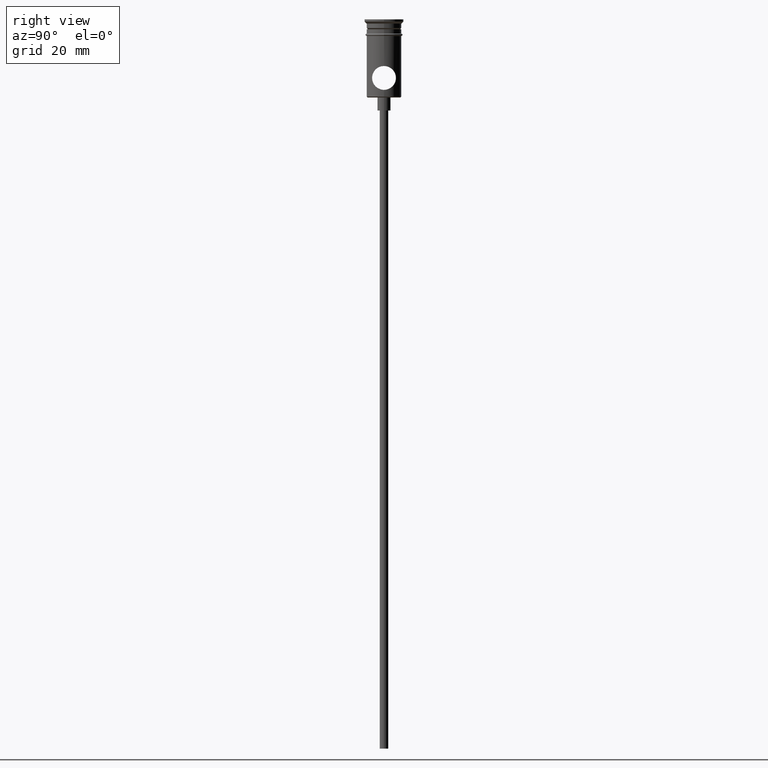
[diagram: clean part render]
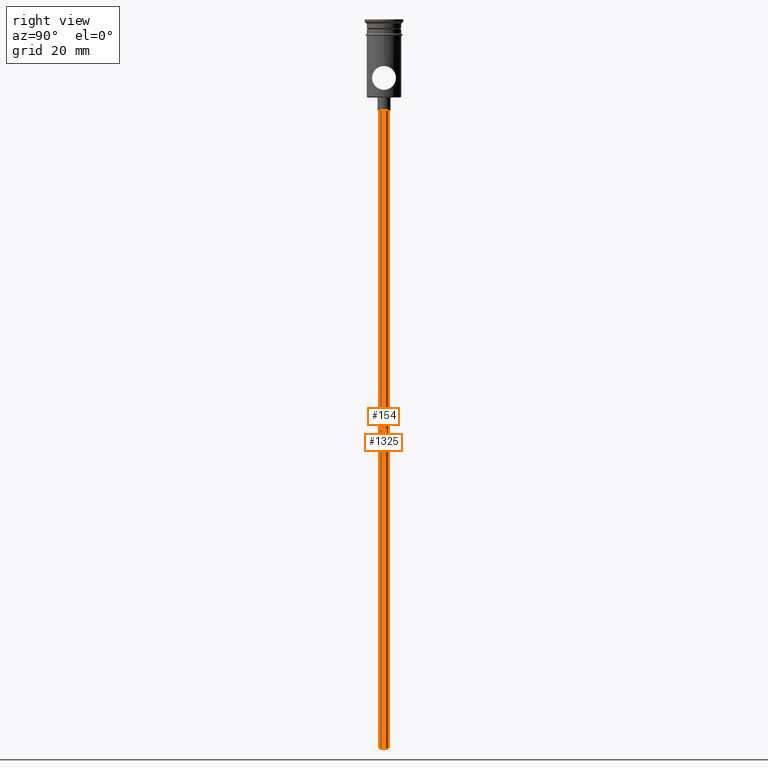
[diagram: same view with one multi-face feature highlighted, each face labeled with its STEP entity id]
A machine part, right view. The highlighted faces form ONE feature: a constant-radius fillet chain: 2 tangent blend faces with common blend radius 1 mm. The faces share edges in the B-rep.
Their STEP definitions:
[1] entity #1325 (Cylinder):
#19 = AXIS2_PLACEMENT_3D ( 'NONE', #709, #695, #29 ) ;
#29 = DIRECTION ( 'NONE',  ( 1.000000000000000000, 0.000000000000000000, 0.000000000000000000 ) ) ;
#77 = EDGE_CURVE ( 'NONE', #785, #440, #358, .T. ) ;
#146 = DIRECTION ( 'NONE',  ( -0.000000000000000000, -0.000000000000000000, 1.000000000000000000 ) ) ;
#199 = DIRECTION ( 'NONE',  ( -1.000000000000000000, 0.000000000000000000, 0.000000000000000000 ) ) ;
#339 = VERTEX_POINT ( 'NONE', #460 ) ;
#342 = DIRECTION ( 'NONE',  ( -1.000000000000000000, 0.000000000000000000, 0.000000000000000000 ) ) ;
#347 = AXIS2_PLACEMENT_3D ( 'NONE', #1383, #1049, #199 ) ;
#356 = CARTESIAN_POINT ( 'NONE',  ( 0.000000000000000000, 0.000000000000000000, -167.9999999999999716 ) ) ;
#358 = LINE ( 'NONE', #788, #987 ) ;
#423 = CARTESIAN_POINT ( 'NONE',  ( -0.9999999999999997780, 1.224646799147352961E-16, -20.99999999999999645 ) ) ;
#440 = VERTEX_POINT ( 'NONE', #423 ) ;
#458 = CARTESIAN_POINT ( 'NONE',  ( 0.9999999999999997780, 0.000000000000000000, -167.9999999999999716 ) ) ;
#460 = CARTESIAN_POINT ( 'NONE',  ( 0.9999999999999997780, 0.000000000000000000, -167.9999999999999716 ) ) ;
#520 = VECTOR ( 'NONE', #1109, 1000.000000000000000 ) ;
#542 = EDGE_CURVE ( 'NONE', #785, #339, #662, .T. ) ;
#547 = EDGE_CURVE ( 'NONE', #339, #953, #666, .T. ) ;
#562 = ORIENTED_EDGE ( 'NONE', *, *, #542, .F. ) ;
#597 = ORIENTED_EDGE ( 'NONE', *, *, #547, .F. ) ;
#662 = CIRCLE ( 'NONE', #1129, 0.9999999999999997780 ) ;
#666 = LINE ( 'NONE', #458, #520 ) ;
#690 = CARTESIAN_POINT ( 'NONE',  ( -0.9999999999999997780, 1.224646799147352961E-16, -167.9999999999999716 ) ) ;
#695 = DIRECTION ( 'NONE',  ( -0.000000000000000000, -0.000000000000000000, 1.000000000000000000 ) ) ;
#709 = CARTESIAN_POINT ( 'NONE',  ( 0.000000000000000000, 0.000000000000000000, -167.9999999999999716 ) ) ;
#785 = VERTEX_POINT ( 'NONE', #690 ) ;
#787 = DIRECTION ( 'NONE',  ( 0.000000000000000000, 0.000000000000000000, -1.000000000000000000 ) ) ;
#788 = CARTESIAN_POINT ( 'NONE',  ( -0.9999999999999997780, 1.224646799147352961E-16, -167.9999999999999716 ) ) ;
#807 = FACE_OUTER_BOUND ( 'NONE', #1389, .T. ) ;
#953 = VERTEX_POINT ( 'NONE', #1304 ) ;
#956 = CIRCLE ( 'NONE', #347, 0.9999999999999997780 ) ;
#987 = VECTOR ( 'NONE', #146, 1000.000000000000000 ) ;
#1049 = DIRECTION ( 'NONE',  ( 0.000000000000000000, 0.000000000000000000, -1.000000000000000000 ) ) ;
#1109 = DIRECTION ( 'NONE',  ( -0.000000000000000000, -0.000000000000000000, 1.000000000000000000 ) ) ;
#1129 = AXIS2_PLACEMENT_3D ( 'NONE', #356, #787, #342 ) ;
#1206 = ORIENTED_EDGE ( 'NONE', *, *, #1387, .T. ) ;
#1248 = CYLINDRICAL_SURFACE ( 'NONE', #19, 0.9999999999999997780 ) ;
#1304 = CARTESIAN_POINT ( 'NONE',  ( 0.9999999999999997780, 0.000000000000000000, -20.99999999999999645 ) ) ;
#1322 = ORIENTED_EDGE ( 'NONE', *, *, #77, .T. ) ;
#1325 = ADVANCED_FACE ( 'NONE', ( #807 ), #1248, .T. ) ;
#1383 = CARTESIAN_POINT ( 'NONE',  ( 0.000000000000000000, 0.000000000000000000, -20.99999999999999645 ) ) ;
#1387 = EDGE_CURVE ( 'NONE', #440, #953, #956, .T. ) ;
#1389 = EDGE_LOOP ( 'NONE', ( #562, #1322, #1206, #597 ) ) ;
[2] entity #154 (Cylinder):
#75 = ORIENTED_EDGE ( 'NONE', *, *, #547, .T. ) ;
#77 = EDGE_CURVE ( 'NONE', #785, #440, #358, .T. ) ;
#81 = DIRECTION ( 'NONE',  ( -0.000000000000000000, -0.000000000000000000, 1.000000000000000000 ) ) ;
#90 = AXIS2_PLACEMENT_3D ( 'NONE', #508, #81, #937 ) ;
#146 = DIRECTION ( 'NONE',  ( -0.000000000000000000, -0.000000000000000000, 1.000000000000000000 ) ) ;
#154 = ADVANCED_FACE ( 'NONE', ( #1381 ), #516, .T. ) ;
#215 = CARTESIAN_POINT ( 'NONE',  ( 0.000000000000000000, 0.000000000000000000, -167.9999999999999716 ) ) ;
#317 = CIRCLE ( 'NONE', #1105, 0.9999999999999997780 ) ;
#339 = VERTEX_POINT ( 'NONE', #460 ) ;
#358 = LINE ( 'NONE', #788, #987 ) ;
#408 = DIRECTION ( 'NONE',  ( 0.000000000000000000, 0.000000000000000000, -1.000000000000000000 ) ) ;
#423 = CARTESIAN_POINT ( 'NONE',  ( -0.9999999999999997780, 1.224646799147352961E-16, -20.99999999999999645 ) ) ;
#440 = VERTEX_POINT ( 'NONE', #423 ) ;
#444 = CIRCLE ( 'NONE', #1008, 0.9999999999999997780 ) ;
#458 = CARTESIAN_POINT ( 'NONE',  ( 0.9999999999999997780, 0.000000000000000000, -167.9999999999999716 ) ) ;
#460 = CARTESIAN_POINT ( 'NONE',  ( 0.9999999999999997780, 0.000000000000000000, -167.9999999999999716 ) ) ;
#508 = CARTESIAN_POINT ( 'NONE',  ( 0.000000000000000000, 0.000000000000000000, -167.9999999999999716 ) ) ;
#516 = CYLINDRICAL_SURFACE ( 'NONE', #90, 0.9999999999999997780 ) ;
#520 = VECTOR ( 'NONE', #1109, 1000.000000000000000 ) ;
#547 = EDGE_CURVE ( 'NONE', #339, #953, #666, .T. ) ;
#666 = LINE ( 'NONE', #458, #520 ) ;
#682 = DIRECTION ( 'NONE',  ( 0.000000000000000000, 0.000000000000000000, -1.000000000000000000 ) ) ;
#690 = CARTESIAN_POINT ( 'NONE',  ( -0.9999999999999997780, 1.224646799147352961E-16, -167.9999999999999716 ) ) ;
#717 = DIRECTION ( 'NONE',  ( -1.000000000000000000, 0.000000000000000000, 0.000000000000000000 ) ) ;
#785 = VERTEX_POINT ( 'NONE', #690 ) ;
#788 = CARTESIAN_POINT ( 'NONE',  ( -0.9999999999999997780, 1.224646799147352961E-16, -167.9999999999999716 ) ) ;
#887 = EDGE_CURVE ( 'NONE', #953, #440, #317, .T. ) ;
#937 = DIRECTION ( 'NONE',  ( 1.000000000000000000, 0.000000000000000000, 0.000000000000000000 ) ) ;
#953 = VERTEX_POINT ( 'NONE', #1304 ) ;
#970 = EDGE_CURVE ( 'NONE', #339, #785, #444, .T. ) ;
#985 = ORIENTED_EDGE ( 'NONE', *, *, #887, .T. ) ;
#987 = VECTOR ( 'NONE', #146, 1000.000000000000000 ) ;
#1008 = AXIS2_PLACEMENT_3D ( 'NONE', #215, #408, #717 ) ;
#1017 = ORIENTED_EDGE ( 'NONE', *, *, #77, .F. ) ;
#1095 = ORIENTED_EDGE ( 'NONE', *, *, #970, .F. ) ;
#1105 = AXIS2_PLACEMENT_3D ( 'NONE', #1220, #682, #1112 ) ;
#1109 = DIRECTION ( 'NONE',  ( -0.000000000000000000, -0.000000000000000000, 1.000000000000000000 ) ) ;
#1112 = DIRECTION ( 'NONE',  ( -1.000000000000000000, 0.000000000000000000, 0.000000000000000000 ) ) ;
#1220 = CARTESIAN_POINT ( 'NONE',  ( 0.000000000000000000, 0.000000000000000000, -20.99999999999999645 ) ) ;
#1304 = CARTESIAN_POINT ( 'NONE',  ( 0.9999999999999997780, 0.000000000000000000, -20.99999999999999645 ) ) ;
#1381 = FACE_OUTER_BOUND ( 'NONE', #1385, .T. ) ;
#1385 = EDGE_LOOP ( 'NONE', ( #1017, #1095, #75, #985 ) ) ;